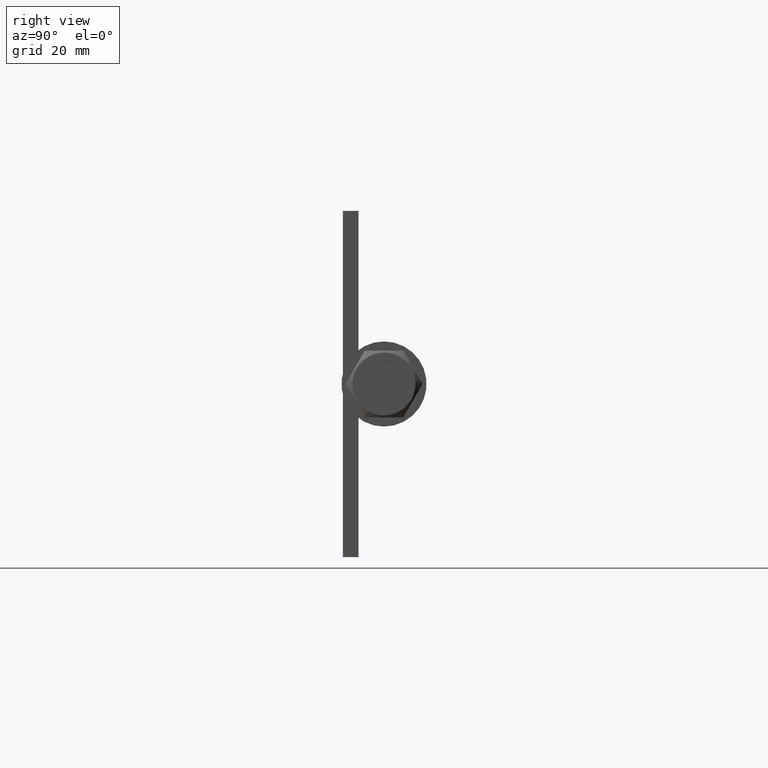
[diagram: clean part render]
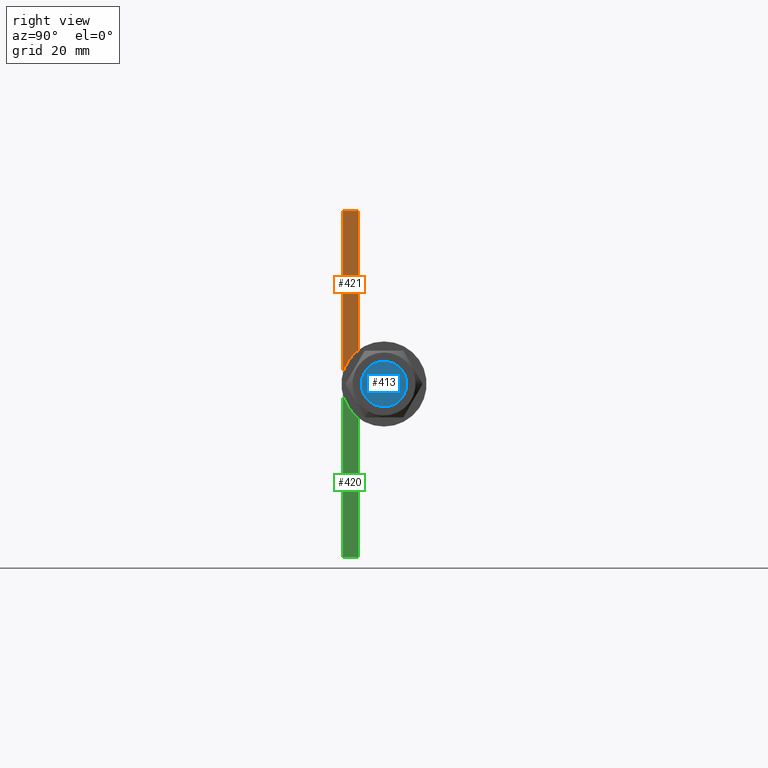
[diagram: same view with three faces highlighted in distinct colors, each labeled with its STEP entity id]
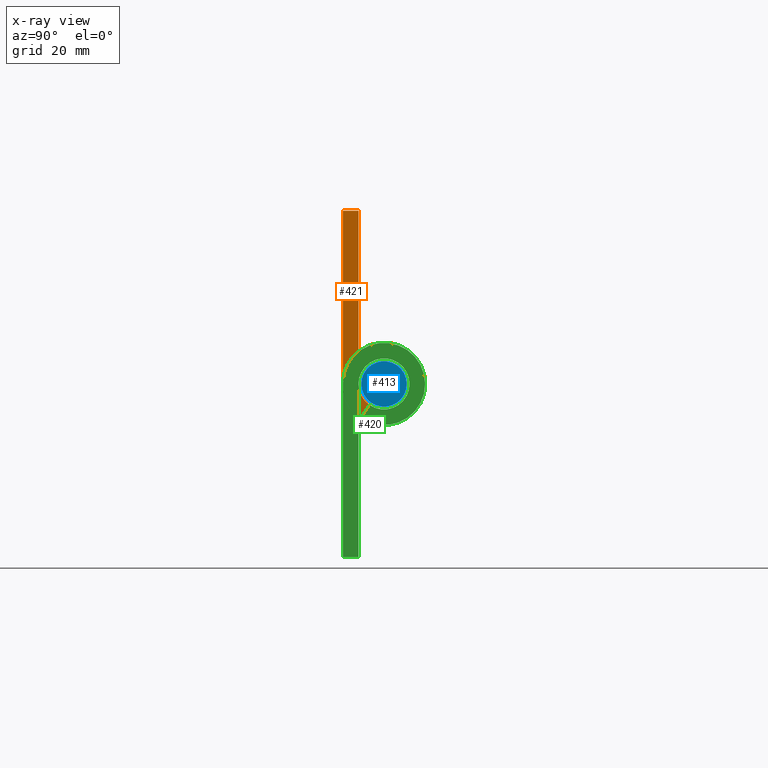
[diagram: x-ray of the same camera — body ghosted, the three highlighted faces saturated]
A machine part, right view with three faces highlighted in distinct colors.
The next image is the same camera in x-ray (body ghosted, the three faces saturated) — at least one of them is partly hidden behind the body in this view.
Their STEP definitions:

[orange] entity #421 — the highlighted planar face has unit normal (1, 0, -0).
#49=LINE('',#718,#69);
#53=LINE('',#726,#73);
#56=LINE('',#732,#76);
#60=LINE('',#744,#80);
#69=VECTOR('',#517,61.);
#73=VECTOR('',#523,5.5);
#76=VECTOR('',#528,61.);
#80=VECTOR('',#540,5.50000000000001);
#136=FACE_OUTER_BOUND('',#166,.T.);
#166=EDGE_LOOP('',(#332,#333,#334,#335,#336,#337));
#195=CIRCLE('',#455,8.99999999999999);
#197=CIRCLE('',#459,14.5);
#211=VERTEX_POINT('',#716);
#212=VERTEX_POINT('',#717);
#215=VERTEX_POINT('',#725);
#217=VERTEX_POINT('',#731);
#219=VERTEX_POINT('',#737);
#221=VERTEX_POINT('',#743);
#248=EDGE_CURVE('',#211,#212,#49,.T.);
#252=EDGE_CURVE('',#212,#215,#53,.T.);
#255=EDGE_CURVE('',#215,#217,#56,.T.);
#258=EDGE_CURVE('',#217,#219,#195,.T.);
#261=EDGE_CURVE('',#219,#221,#60,.T.);
#264=EDGE_CURVE('',#221,#211,#197,.T.);
#332=ORIENTED_EDGE('',*,*,#248,.F.);
#333=ORIENTED_EDGE('',*,*,#264,.F.);
#334=ORIENTED_EDGE('',*,*,#261,.F.);
#335=ORIENTED_EDGE('',*,*,#258,.F.);
#336=ORIENTED_EDGE('',*,*,#255,.F.);
#337=ORIENTED_EDGE('',*,*,#252,.F.);
#398=PLANE('',#462);
#421=ADVANCED_FACE('',(#136),#398,.T.);
#455=AXIS2_PLACEMENT_3D('',#738,#533,#534);
#459=AXIS2_PLACEMENT_3D('',#749,#545,#546);
#462=AXIS2_PLACEMENT_3D('',#752,#551,#552);
#517=DIRECTION('',(-1.,-1.09202264717229E-16,0.));
#523=DIRECTION('',(0.,1.,0.));
#528=DIRECTION('',(1.,2.18404529434457E-16,0.));
#533=DIRECTION('center_axis',(0.,0.,1.));
#534=DIRECTION('ref_axis',(1.,0.,0.));
#540=DIRECTION('',(-0.82963852198642,-0.558300924982387,0.));
#545=DIRECTION('center_axis',(0.,0.,-1.));
#546=DIRECTION('ref_axis',(1.22464679914735E-16,-1.,0.));
#551=DIRECTION('center_axis',(0.,0.,1.));
#552=DIRECTION('ref_axis',(1.,0.,0.));
#716=CARTESIAN_POINT('',(0.,0.,100.));
#717=CARTESIAN_POINT('',(-61.,-6.66133814775094E-15,100.));
#718=CARTESIAN_POINT('',(-61.,-6.66133814775094E-15,100.));
#725=CARTESIAN_POINT('',(-61.,5.49999999999999,100.));
#726=CARTESIAN_POINT('',(-61.,5.49999999999999,100.));
#731=CARTESIAN_POINT('',(4.63263002376526E-16,5.50000000000001,100.));
#732=CARTESIAN_POINT('',(0.,5.50000000000001,100.));
#737=CARTESIAN_POINT('',(-7.46674669787777,9.47529167515852,100.));
#738=CARTESIAN_POINT('Origin',(-1.77573785876366E-15,14.5,100.));
#743=CARTESIAN_POINT('',(-12.0297585688031,6.40463658775539,100.));
#744=CARTESIAN_POINT('',(-12.0297585688031,6.40463658775539,100.));
#749=CARTESIAN_POINT('Origin',(-1.77573785876366E-15,14.5,100.));
#752=CARTESIAN_POINT('Origin',(-15.756787405117,8.99972122167467,100.));

[blue] entity #413 — the highlighted planar face has unit normal (1, 0, 0).
#128=FACE_OUTER_BOUND('',#158,.T.);
#158=EDGE_LOOP('',(#301));
#194=CIRCLE('',#448,8.);
#210=VERTEX_POINT('',#711);
#247=EDGE_CURVE('',#210,#210,#194,.T.);
#301=ORIENTED_EDGE('',*,*,#247,.T.);
#392=PLANE('',#449);
#413=ADVANCED_FACE('',(#128),#392,.T.);
#448=AXIS2_PLACEMENT_3D('',#712,#509,#510);
#449=AXIS2_PLACEMENT_3D('',#713,#511,#512);
#509=DIRECTION('center_axis',(1.,0.,0.));
#510=DIRECTION('ref_axis',(0.,1.,0.));
#511=DIRECTION('center_axis',(1.,0.,0.));
#512=DIRECTION('ref_axis',(0.,0.,-1.));
#711=CARTESIAN_POINT('',(112.5,7.99999999999998,0.));
#712=CARTESIAN_POINT('Origin',(112.5,-2.06659147356116E-14,0.));
#713=CARTESIAN_POINT('Origin',(112.5,3.99999999999998,0.));

[green] entity #420 — the highlighted planar face has unit normal (-1, -0, -0).
#51=LINE('',#722,#71);
#55=LINE('',#729,#75);
#58=LINE('',#735,#78);
#62=LINE('',#747,#82);
#71=VECTOR('',#519,61.);
#75=VECTOR('',#525,5.5);
#78=VECTOR('',#530,61.);
#82=VECTOR('',#542,5.50000000000001);
#135=FACE_OUTER_BOUND('',#165,.T.);
#165=EDGE_LOOP('',(#326,#327,#328,#329,#330,#331));
#196=CIRCLE('',#456,8.99999999999999);
#198=CIRCLE('',#460,14.5);
#213=VERTEX_POINT('',#719);
#214=VERTEX_POINT('',#721);
#216=VERTEX_POINT('',#727);
#218=VERTEX_POINT('',#733);
#220=VERTEX_POINT('',#739);
#222=VERTEX_POINT('',#745);
#250=EDGE_CURVE('',#213,#214,#51,.T.);
#254=EDGE_CURVE('',#216,#213,#55,.T.);
#257=EDGE_CURVE('',#218,#216,#58,.T.);
#260=EDGE_CURVE('',#220,#218,#196,.T.);
#263=EDGE_CURVE('',#222,#220,#62,.T.);
#265=EDGE_CURVE('',#214,#222,#198,.T.);
#326=ORIENTED_EDGE('',*,*,#265,.F.);
#327=ORIENTED_EDGE('',*,*,#250,.F.);
#328=ORIENTED_EDGE('',*,*,#254,.F.);
#329=ORIENTED_EDGE('',*,*,#257,.F.);
#330=ORIENTED_EDGE('',*,*,#260,.F.);
#331=ORIENTED_EDGE('',*,*,#263,.F.);
#397=PLANE('',#461);
#420=ADVANCED_FACE('',(#135),#397,.F.);
#456=AXIS2_PLACEMENT_3D('',#741,#536,#537);
#460=AXIS2_PLACEMENT_3D('',#750,#547,#548);
#461=AXIS2_PLACEMENT_3D('',#751,#549,#550);
#519=DIRECTION('',(1.,1.09202264717229E-16,0.));
#525=DIRECTION('',(0.,-1.,0.));
#530=DIRECTION('',(-1.,-2.18404529434457E-16,0.));
#536=DIRECTION('center_axis',(0.,0.,-1.));
#537=DIRECTION('ref_axis',(1.,0.,0.));
#542=DIRECTION('',(0.82963852198642,0.558300924982387,0.));
#547=DIRECTION('center_axis',(0.,0.,1.));
#548=DIRECTION('ref_axis',(1.22464679914735E-16,-1.,0.));
#549=DIRECTION('center_axis',(0.,0.,1.));
#550=DIRECTION('ref_axis',(1.,0.,0.));
#719=CARTESIAN_POINT('',(-61.,-6.66133814775094E-15,0.));
#721=CARTESIAN_POINT('',(0.,0.,0.));
#722=CARTESIAN_POINT('',(-61.,-6.66133814775094E-15,0.));
#727=CARTESIAN_POINT('',(-61.,5.49999999999999,0.));
#729=CARTESIAN_POINT('',(-61.,5.49999999999999,0.));
#733=CARTESIAN_POINT('',(4.63263002376526E-16,5.50000000000001,0.));
#735=CARTESIAN_POINT('',(0.,5.50000000000001,0.));
#739=CARTESIAN_POINT('',(-7.46674669787777,9.47529167515852,0.));
#741=CARTESIAN_POINT('Origin',(-1.77573785876366E-15,14.5,0.));
#745=CARTESIAN_POINT('',(-12.0297585688031,6.40463658775539,0.));
#747=CARTESIAN_POINT('',(-12.0297585688031,6.40463658775539,0.));
#750=CARTESIAN_POINT('Origin',(-1.77573785876366E-15,14.5,0.));
#751=CARTESIAN_POINT('Origin',(-15.756787405117,8.99972122167467,0.));